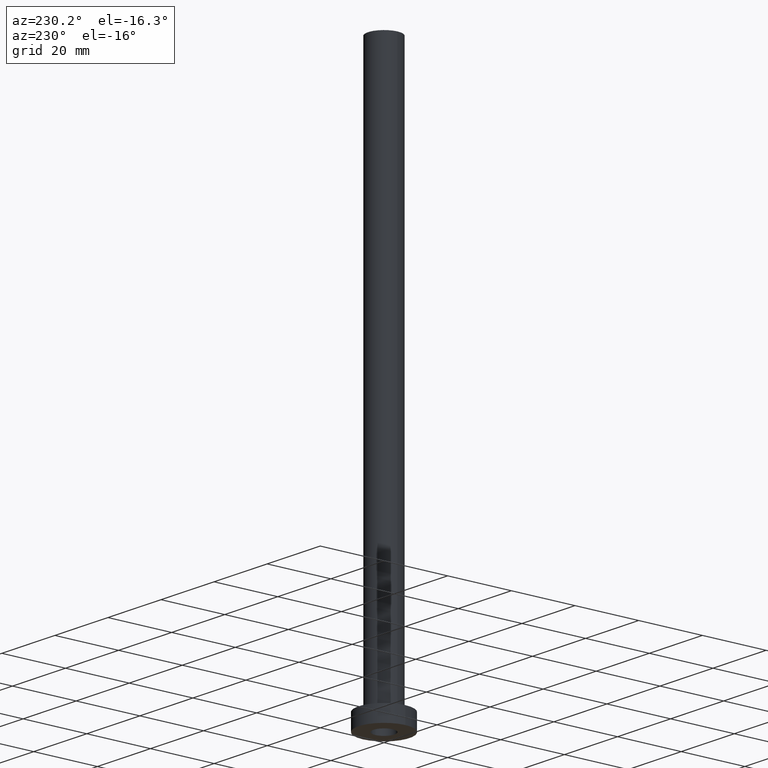
[diagram: clean part render]
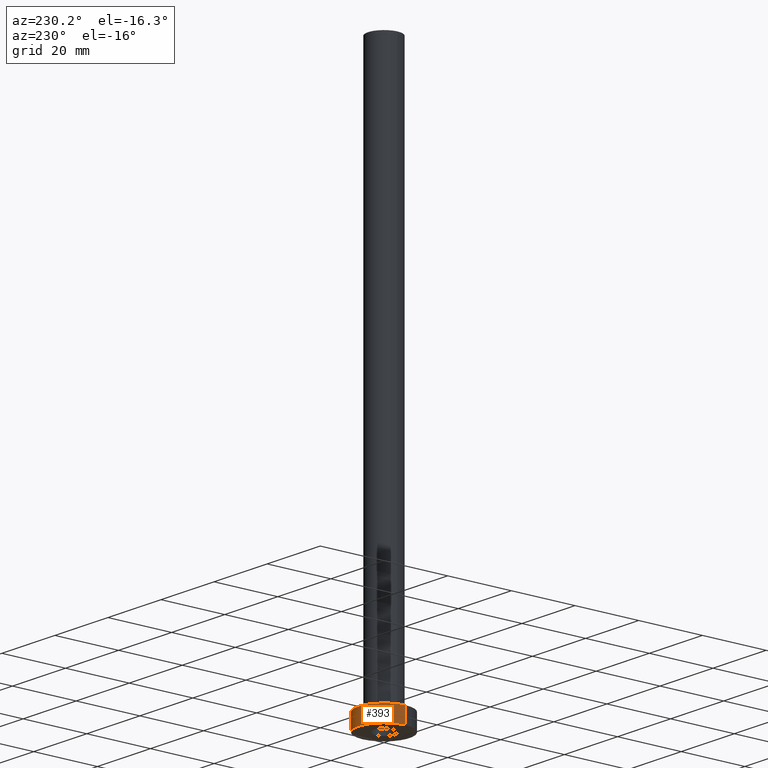
[diagram: same view with one face highlighted and labeled with its STEP entity id]
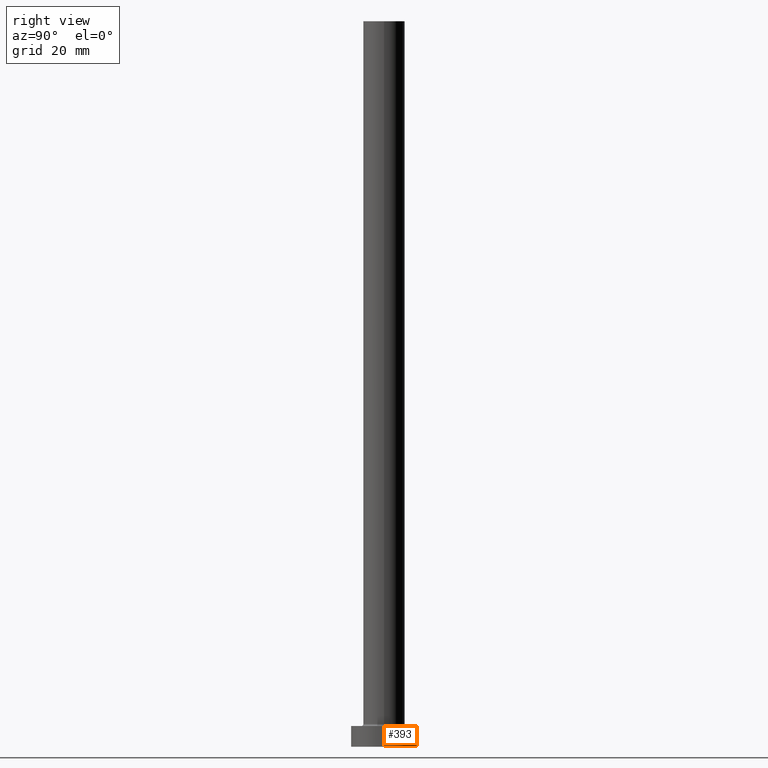
[diagram: same view with one face highlighted and labeled with its STEP entity id]
A machine part, auxiliary view. The second image highlights one B-rep face of the part: STEP entity #393.
A second angle (right view) of the same face is appended — the face is thin or edge-on in the first view.
In plain terms, the highlighted cylindrical surface (edge-blend (fillet) strip) has radius 8 mm, axis along (-0, -0, -1).
Its self-contained STEP definition (entity closure, byte-faithful):
#11 = EDGE_CURVE ( 'NONE', #44, #209, #23, .T. ) ;
#17 = AXIS2_PLACEMENT_3D ( 'NONE', #128, #226, #51 ) ;
#23 = LINE ( 'NONE', #454, #210 ) ;
#41 = DIRECTION ( 'NONE',  ( -0.000000000000000000, -0.000000000000000000, -1.000000000000000000 ) ) ;
#44 = VERTEX_POINT ( 'NONE', #423 ) ;
#51 = DIRECTION ( 'NONE',  ( 1.000000000000000000, 0.000000000000000000, 0.000000000000000000 ) ) ;
#69 = VECTOR ( 'NONE', #41, 1000.000000000000000 ) ;
#71 = EDGE_LOOP ( 'NONE', ( #382, #450, #251, #147 ) ) ;
#84 = CARTESIAN_POINT ( 'NONE',  ( 0.000000000000000000, 0.000000000000000000, 0.000000000000000000 ) ) ;
#98 = DIRECTION ( 'NONE',  ( -0.000000000000000000, -0.000000000000000000, -1.000000000000000000 ) ) ;
#99 = DIRECTION ( 'NONE',  ( -1.000000000000000000, 0.000000000000000000, 0.000000000000000000 ) ) ;
#109 = CARTESIAN_POINT ( 'NONE',  ( 8.000000000000000000, 9.797174393178825657E-16, 5.000000000000000000 ) ) ;
#111 = CARTESIAN_POINT ( 'NONE',  ( 8.000000000000000000, 9.797174393178825657E-16, 5.000000000000000000 ) ) ;
#118 = LINE ( 'NONE', #111, #69 ) ;
#128 = CARTESIAN_POINT ( 'NONE',  ( 0.000000000000000000, 0.000000000000000000, 5.000000000000000000 ) ) ;
#135 = CIRCLE ( 'NONE', #318, 8.000000000000000000 ) ;
#147 = ORIENTED_EDGE ( 'NONE', *, *, #11, .F. ) ;
#153 = CARTESIAN_POINT ( 'NONE',  ( 8.000000000000000000, 9.797174393178825657E-16, 0.000000000000000000 ) ) ;
#154 = EDGE_CURVE ( 'NONE', #380, #236, #118, .T. ) ;
#195 = CARTESIAN_POINT ( 'NONE',  ( 0.000000000000000000, 0.000000000000000000, 5.000000000000000000 ) ) ;
#200 = FACE_OUTER_BOUND ( 'NONE', #71, .T. ) ;
#209 = VERTEX_POINT ( 'NONE', #332 ) ;
#210 = VECTOR ( 'NONE', #98, 1000.000000000000000 ) ;
#218 = DIRECTION ( 'NONE',  ( 0.000000000000000000, 0.000000000000000000, 1.000000000000000000 ) ) ;
#226 = DIRECTION ( 'NONE',  ( 0.000000000000000000, 0.000000000000000000, 1.000000000000000000 ) ) ;
#236 = VERTEX_POINT ( 'NONE', #153 ) ;
#243 = CYLINDRICAL_SURFACE ( 'NONE', #440, 8.000000000000000000 ) ;
#251 = ORIENTED_EDGE ( 'NONE', *, *, #379, .T. ) ;
#318 = AXIS2_PLACEMENT_3D ( 'NONE', #84, #218, #388 ) ;
#320 = EDGE_CURVE ( 'NONE', #380, #44, #365, .T. ) ;
#332 = CARTESIAN_POINT ( 'NONE',  ( -8.000000000000000000, 0.000000000000000000, 0.000000000000000000 ) ) ;
#344 = DIRECTION ( 'NONE',  ( -0.000000000000000000, -0.000000000000000000, -1.000000000000000000 ) ) ;
#365 = CIRCLE ( 'NONE', #17, 8.000000000000000000 ) ;
#379 = EDGE_CURVE ( 'NONE', #236, #209, #135, .T. ) ;
#380 = VERTEX_POINT ( 'NONE', #109 ) ;
#382 = ORIENTED_EDGE ( 'NONE', *, *, #320, .F. ) ;
#388 = DIRECTION ( 'NONE',  ( 1.000000000000000000, 0.000000000000000000, 0.000000000000000000 ) ) ;
#393 = ADVANCED_FACE ( 'NONE', ( #200 ), #243, .T. ) ;
#423 = CARTESIAN_POINT ( 'NONE',  ( -8.000000000000000000, 0.000000000000000000, 5.000000000000000000 ) ) ;
#440 = AXIS2_PLACEMENT_3D ( 'NONE', #195, #344, #99 ) ;
#450 = ORIENTED_EDGE ( 'NONE', *, *, #154, .T. ) ;
#454 = CARTESIAN_POINT ( 'NONE',  ( -8.000000000000000000, 0.000000000000000000, 5.000000000000000000 ) ) ;